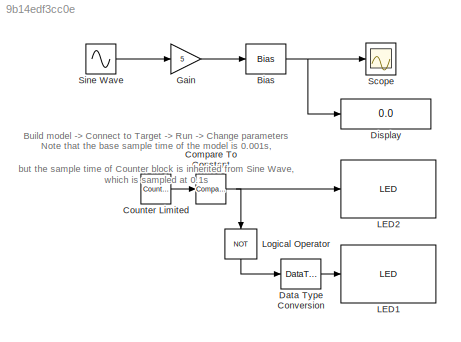
MODEL slx_9b14edf3cc0e
KIND model
BLOCK [Bias] Bias
  Bias = 32
  SaturateOnIntegerOverflow = off
BLOCK [Reference] Compare To Constant  REF=simulink/Logic and Bit
Operations/Compare
To Constant
  OutDataTypeStr = uint8
  Ports = [1, 1]
  SourceBlock = simulink/Logic and Bit\nOperations/Compare\nTo Constant
  SourceType = Compare To Constant
  ZeroCross = on
  const = 4
  relop = >=
BLOCK [Reference] Counter Limited  REF=simulink/Sources/Counter
Limited
  AttributesFormatString = Upper limit: %<uplimit>
  Ports = [0, 1]
  SourceBlock = simulink/Sources/Counter\nLimited
  SourceType = Counter Limited
  tsamp = -1
  uplimit = 7
BLOCK [DataTypeConversion] Data Type Conversion
  RndMeth = Floor
  SaturateOnIntegerOverflow = off
BLOCK [Display] Display
  Decimation = 1
  Ports = [1]
BLOCK [Gain] Gain
  Gain = 5
  OutDataTypeStr = Inherit: Inherit via internal rule
  ParamDataTypeStr = Inherit: Inherit via internal rule
  SaturateOnIntegerOverflow = off
BLOCK [Reference] LED1  REF=microdaq_lib/Utilities/LED  (lib defined in slx_912f07ce28e3)
  Ports = [1]
  SParameter1 = D2
  SourceBlock = microdaq_lib/Utilities/LED
  SourceType = LED
BLOCK [Reference] LED2  REF=microdaq_lib/Utilities/LED  (lib defined in slx_912f07ce28e3)
  Ports = [1]
  SParameter1 = D1
  SourceBlock = microdaq_lib/Utilities/LED
  SourceType = LED
BLOCK [Logic] Logical Operator
  AllPortsSameDT = off
  Operator = NOT
  OutDataTypeStr = boolean
  Ports = [1, 1]
BLOCK [Scope] Scope
  DataFormat = StructureWithTime
  Decimation = 1
  Grid = on
  LimitDataPoints = off
  MaxDataPoints = 10
  NumInputPorts = 1
  Ports = [1]
  SampleInput = off
  SampleTime = -1
  SaveName = ScopeData
  SaveToWorkspace = off
  ShowLegends = off
  TickLabels = OneTimeTick
  TimeRange = 10
  YMax = 37
  YMin = 27
  ZoomMode = on
BLOCK [Sin] Sine Wave
  AttributesFormatString = Sample Time: %<SampleTime>
  Ports = [0, 1]
  SampleTime = 0.1
ANNOTATION (root): Build model -> Connect to Target -> Run -> Change parameters Note that the base sample time of the model is 0.001s, but the sample time of Counter block is inherited from Sine Wave, which is sampled at 0.1s
NET Bias:1 -> Display:1, Scope:1
NET Compare To Constant:1 -> LED2:1, Logical Operator:1
LINE Counter Limited:1 -> Compare To Constant:1
LINE Data Type Conversion:1 -> LED1:1
LINE Gain:1 -> Bias:1
LINE Logical Operator:1 -> Data Type Conversion:1
LINE Sine Wave:1 -> Gain:1
note: NET lines group one-source signal fan-out (src -> all destinations, sorted); 1:1 wires keep LINE
